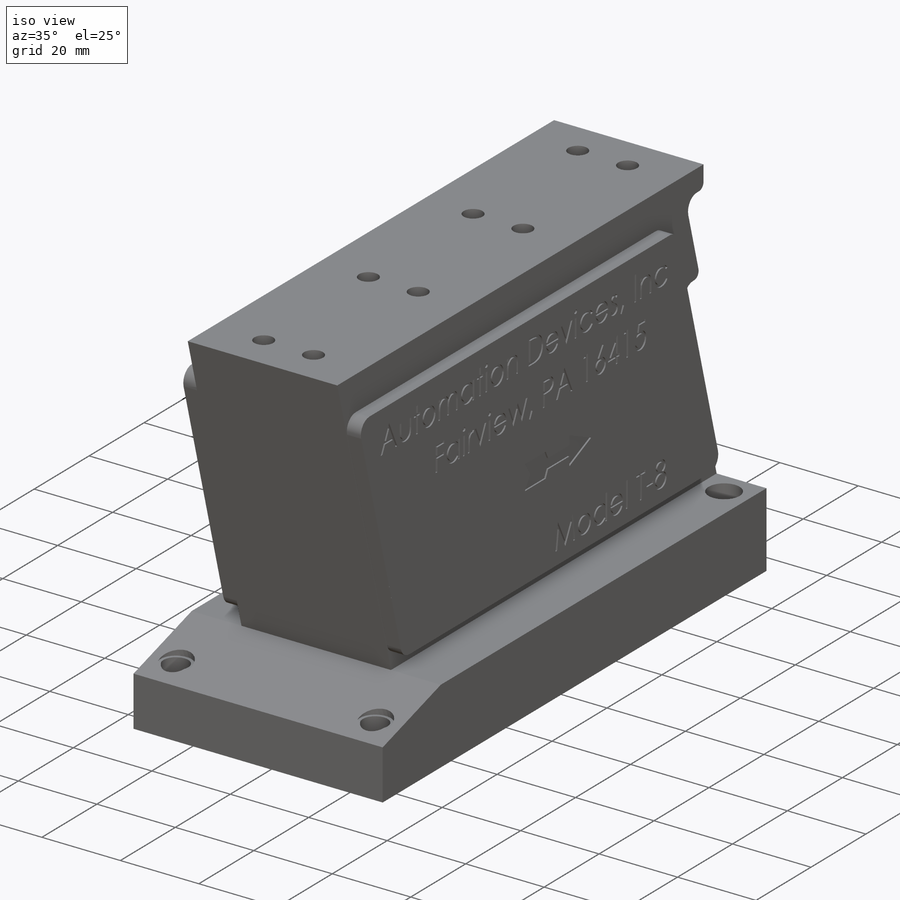
[diagram: iso view]
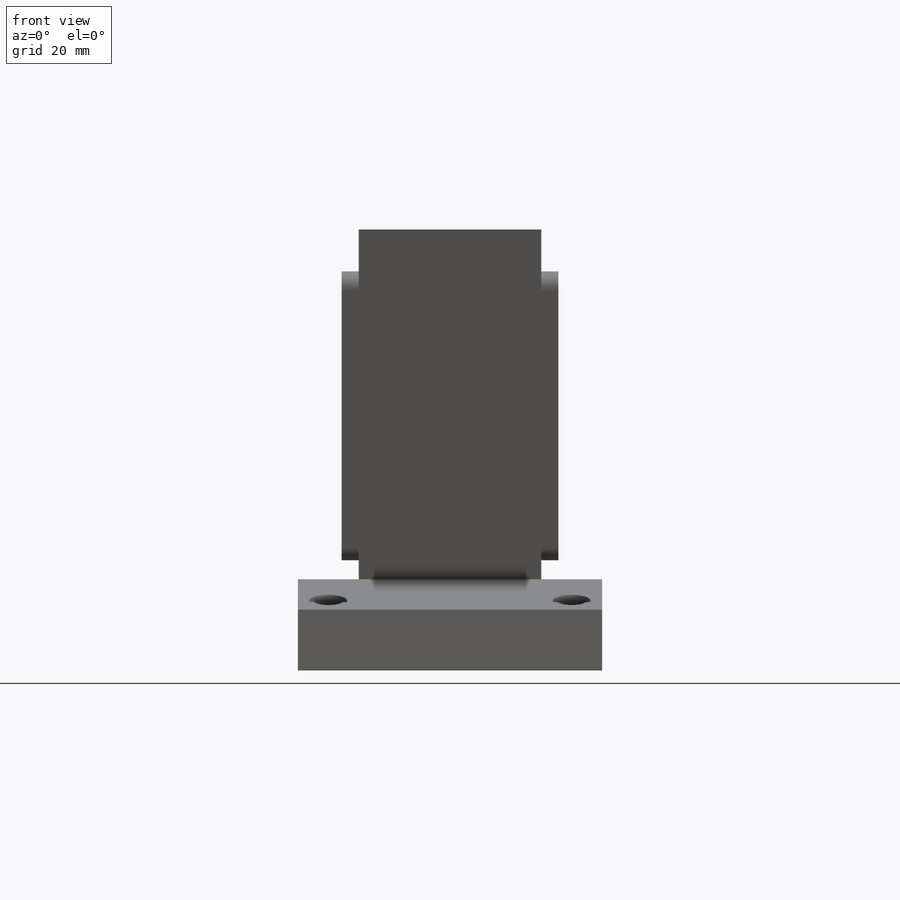
[diagram: front view]
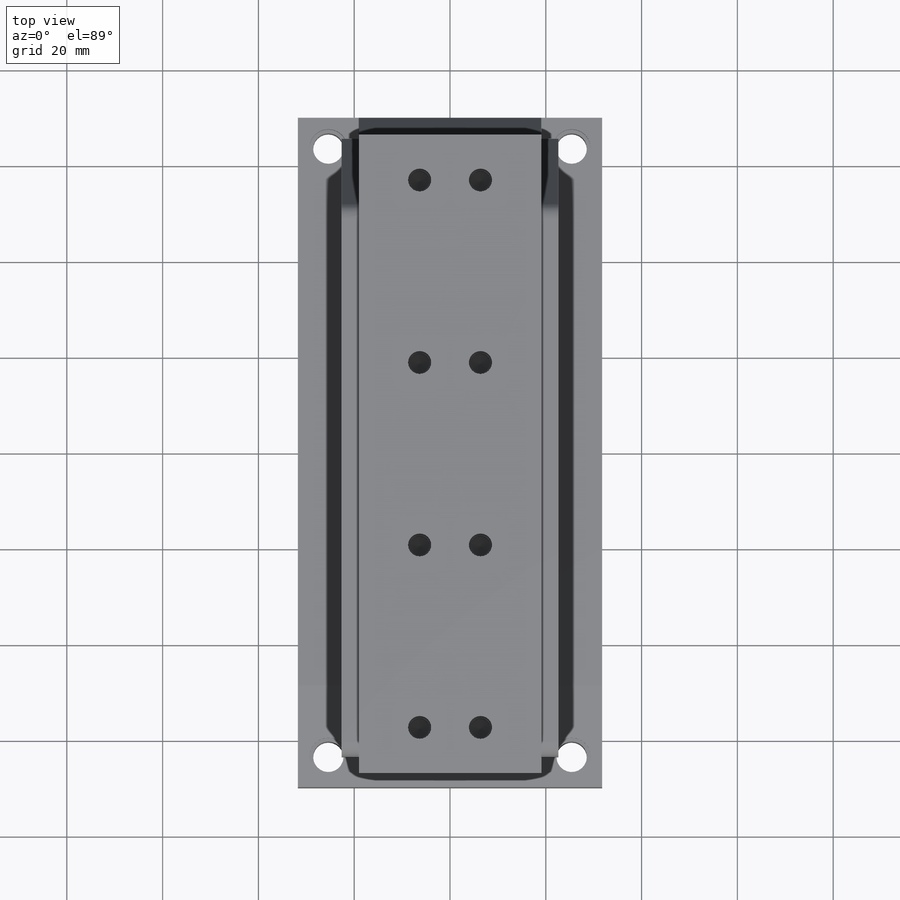
[diagram: top view]
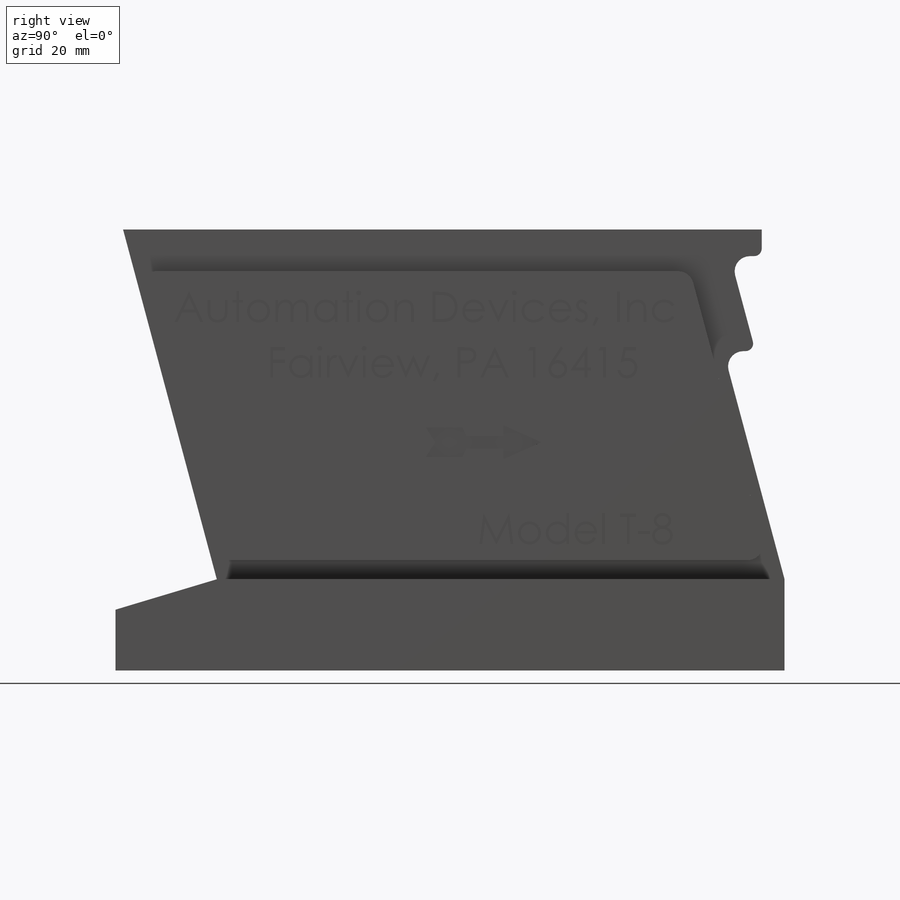
[diagram: right view]
SOLIDWORKS PART (.sldprt)
format: sldprt  version: not decoded by parser v0  size: 1,409,024 bytes
history: native  units: mm
features: sketch x10, cut_extrude x3, extrude x2, hole x2, fillet x2, material x1, plane x1, pattern_linear x1, mirror x1 (+12 scaffold rows collapsed)
feature tree (35):
  scaffold x12  (default folders/planes/origin — collapsed)
  material  "Material <not specified>"
  sketch  "Sketch2"
  sketch  "param"  dims[c1.D1=19.05mm c1.D2=139.7mm c1.D3=19.05mm c2.D3=15.0deg c2.D4=13.7414mm c2.D5=84.5312mm c2.D6=13.7414mm c2.D7=13.081mm c2.D8=1.5748mm c2.D9=21.6916mm c2.D10=~4.72694mm c2.D11=12.7mm c2.D12=29.1592mm c3.D8=~2.366611mm c3.D13=~2.23266mm c3.D3=19.05mm c3.D4=19.05mm c4.D4=15.0deg c4.D5=21.1582mm c4.D6=133.35mm c4.D7=5.5626mm c4.D8=19.8374mm c4.D9=47.625mm c4.D10=6.6294mm c4.D12=~1.313985mm]
  extrude  "Extrude1"  Depth=63.5mm
  sketch  "Sketch3"  dims[c1.D1=19.05mm c1.D2=38.1mm c1.D3=20.6248mm c1.D4=21.59mm c1.D5=41.275mm c2.D4=21.59mm]
  cut_extrude  "Cut-Extrude1"  [1 undecoded]
  hole  "1/4-20 Tapped Hole1"  Diameter=6.35mm Depth=92.075mm
  sketch  "Sketch13"  dims[D1=6.35mm D2=50.8mm D3=6.35mm D4=127.0mm]
  sketch  "Sketch12"  dims[hole-wizard template sketch: 60 standard entries collapsed; hole parameters kept: c18.Thru Tap Drill Depth=92.075mm]
  plane  "Plane1"  Offset=19.05mm
  sketch  "Sketch14"  dims[c1.D1=7.9375mm c1.D2=7.9375mm c1.D3=7.9375mm c2.D2=7.9375mm c2.D3=7.9375mm c3.D2=6.35mm c3.D3=6.35mm c4.D2=6.35mm c4.D3=6.35mm]
  cut_extrude  "Cut-Extrude4"  Depth=4.7625mm
  fillet  "Fillet1"  Radius=1.5875mm
  fillet  "Fillet2"  Radius=3.175mm
  hole  "#10-32 Tapped Hole1"  Diameter=4.0386mm Depth=13.6144mm
  sketch  "Sketch16"  dims[D1=12.7mm D2=6.35mm D3=9.525mm]
  sketch  "Sketch15"  dims[hole-wizard template sketch: 28 standard entries collapsed; hole parameters kept: c8.Tap Drill Dia.=4.0386mm c8.Tap Drill Depth=13.6144mm c8.Thread Major Dia.=4.826mm c8.Thread Depth=9.652mm c8.D5=~14.816244mm c8.Drill Angle=118.0deg]
  pattern_linear  "LPattern1"  Count1=4 Count2=1 Spacing1=38.1mm Spacing2=50mm
  sketch  "Sketch17"  dims[c1.D3=3.175mm c1.D1=~47.865341mm c2.D1=15.0deg c2.D2=60.325mm c2.D3=123.825mm c2.D4=~119.605765mm c3.D3=111.9124mm c3.D4=8.7376mm c3.D1=111.9124mm c3.D5=~2.590186mm c4.D1=111.9124mm c4.D5=2.413mm]
  extrude  "Extrude2"  Depth=3.5814mm
  mirror  "Mirror1"
  sketch  "Sketch18"  dims[c1.D1=7.62mm c1.D2=2.54mm c1.D3=6.35mm c1.D4=7.9375mm c1.D5=7.6962mm c1.D6=1.5875mm c1.D7=4.7625mm c1.D8=1.905mm c2.D7=3.683mm c2.D8=1.905mm c2.D3=2.286mm c3.D8=2.032mm c3.D6=24.13mm c3.D9=88.9mm c3.D10=47.625mm]
  cut_extrude  "Cut-Extrude5"  Depth=0.396875mm
decode coverage: 18 of 21 modeling features carry decoded parameters
note: ~ marks probable driven/reference dimensions
note: 1 parameter value undecoded
note: suppression state not decoded; provenance and decode notes live in map.json
